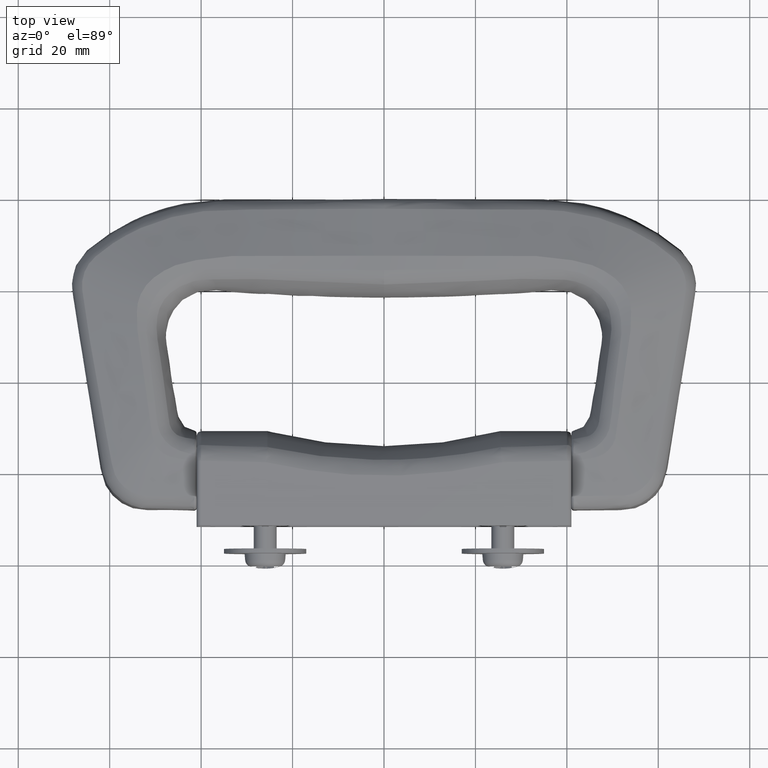
[diagram: clean part render]
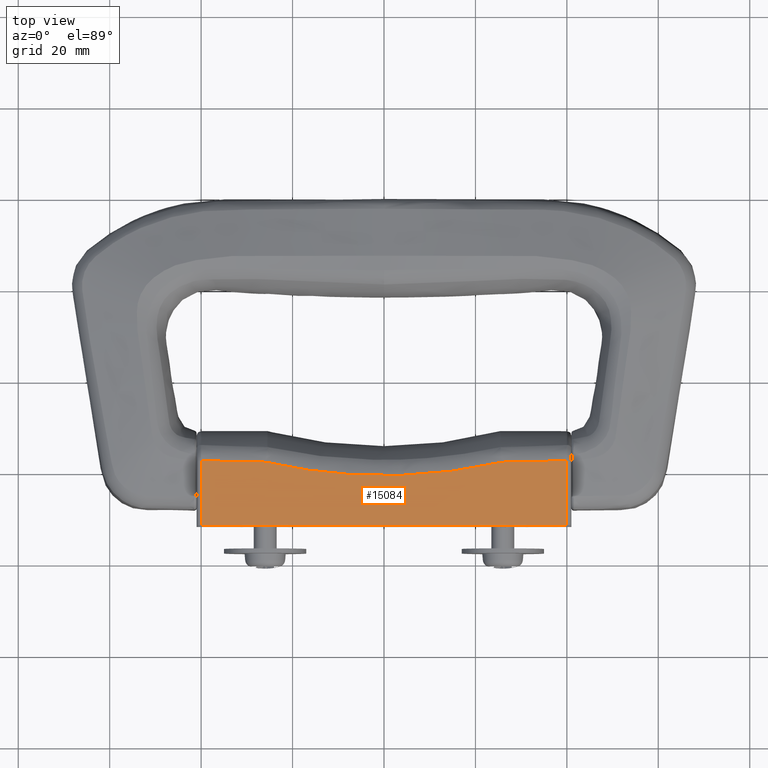
[diagram: same view with one face highlighted and labeled with its STEP entity id]
A machine part, top view. The second image highlights one B-rep face of the part: STEP entity #15084.
In plain terms, the highlighted planar face has unit normal (0, -0, 1).
Its self-contained STEP definition (entity closure, byte-faithful):
#755 = CARTESIAN_POINT ( 'NONE',  ( -21.65171596104325900, 12.91004878362431700, 10.50000000000000200 ) ) ;
#843 = LINE ( 'NONE', #6575, #13180 ) ;
#895 = LINE ( 'NONE', #1050, #13225 ) ;
#946 = CARTESIAN_POINT ( 'NONE',  ( -28.11047643828061000, 13.86612501253413400, 10.50000000000000000 ) ) ;
#947 = CARTESIAN_POINT ( 'NONE',  ( 34.34640326062525900, 14.00626122235785500, 10.49999999999998800 ) ) ;
#1050 = CARTESIAN_POINT ( 'NONE',  ( -40.00000000000000000, 6.999999999999999100, 10.50000000000000000 ) ) ;
#1066 = LINE ( 'NONE', #5747, #10629 ) ;
#1129 = ORIENTED_EDGE ( 'NONE', *, *, #6088, .T. ) ;
#1258 = VERTEX_POINT ( 'NONE', #8271 ) ;
#1656 = CARTESIAN_POINT ( 'NONE',  ( 25.91744196815846000, 13.81965823607241900, 10.49999999999998900 ) ) ;
#1932 = CARTESIAN_POINT ( 'NONE',  ( 23.79007269659754800, 13.33650222574549600, 10.49999999999998900 ) ) ;
#1973 = B_SPLINE_CURVE_WITH_KNOTS ( 'NONE', 3,
 ( #15246, #12846, #947, #9329, #2164, #10537, #3394, #11728, #4588, #12903 ),
 .UNSPECIFIED., .F., .F.,
 ( 4, 3, 3, 4 ),
 ( 0.001000283076197869900, 0.009483074210598152800, 0.01179621480890856400, 0.01508650401174740900 ),
 .UNSPECIFIED. ) ;
#1986 = CARTESIAN_POINT ( 'NONE',  ( -25.91744196816185300, 13.81965823607243800, 10.50000000000000000 ) ) ;
#2080 = DIRECTION ( 'NONE',  ( -0.0000000000000000000, 1.000000000000000000, 2.993305110249448200E-016 ) ) ;
#2163 = CARTESIAN_POINT ( 'NONE',  ( -30.57558702555571300, 13.92047755060223200, 10.50000000000000000 ) ) ;
#2164 = CARTESIAN_POINT ( 'NONE',  ( 30.74868635059841500, 13.92457668638245100, 10.49999999999998800 ) ) ;
#2276 = DIRECTION ( 'NONE',  ( 0.0000000000000000000, -1.000000000000000000, -2.993305110249448200E-016 ) ) ;
#2308 = EDGE_CURVE ( 'NONE', #8793, #13211, #895, .T. ) ;
#2818 = EDGE_CURVE ( 'NONE', #5942, #12652, #6661, .T. ) ;
#3153 = CARTESIAN_POINT ( 'NONE',  ( 21.65205625840939200, 12.91013087448644800, 10.50000000000002000 ) ) ;
#3385 = CARTESIAN_POINT ( 'NONE',  ( -40.00000000000000000, 0.0000000000000000000, 10.50000000000000400 ) ) ;
#3393 = CARTESIAN_POINT ( 'NONE',  ( -33.31276256288870700, 13.98316759584706400, 10.50000000000000200 ) ) ;
#3394 = CARTESIAN_POINT ( 'NONE',  ( 29.20697315264573700, 13.89030136377649400, 10.49999999999998900 ) ) ;
#3623 = ORIENTED_EDGE ( 'NONE', *, *, #14580, .T. ) ;
#3733 = DIRECTION ( 'NONE',  ( -0.0000000000000000000, 1.000000000000000000, 2.993305110249448200E-016 ) ) ;
#3833 = VECTOR ( 'NONE', #3733, 1000.000000000000000 ) ;
#4056 = ORIENTED_EDGE ( 'NONE', *, *, #2308, .T. ) ;
#4100 = ORIENTED_EDGE ( 'NONE', *, *, #11200, .T. ) ;
#4351 = CARTESIAN_POINT ( 'NONE',  ( 15.19320495795107800, 11.86469949385953800, 10.49999999999986100 ) ) ;
#4587 = CARTESIAN_POINT ( 'NONE',  ( -35.94350402314672300, 14.04447183087495100, 10.50000000000000200 ) ) ;
#4588 = CARTESIAN_POINT ( 'NONE',  ( 27.01396687975210400, 13.84251996901201100, 10.49999999999998900 ) ) ;
#4921 = CARTESIAN_POINT ( 'NONE',  ( 40.00000000000000000, 14.16450808053682100, 10.49999999999998600 ) ) ;
#5012 = LINE ( 'NONE', #14010, #7449 ) ;
#5307 = ORIENTED_EDGE ( 'NONE', *, *, #5390, .T. ) ;
#5337 = AXIS2_PLACEMENT_3D ( 'NONE', #10550, #12920, #5800 ) ;
#5390 = EDGE_CURVE ( 'NONE', #12652, #8793, #12863, .T. ) ;
#5532 = VERTEX_POINT ( 'NONE', #9710 ) ;
#5537 = CARTESIAN_POINT ( 'NONE',  ( 4.358307079112554700, 10.86543681995805400, 10.49999999999999300 ) ) ;
#5747 = CARTESIAN_POINT ( 'NONE',  ( -40.00000000000000000, 1.435392964951862200E-015, 10.49999999999999800 ) ) ;
#5782 = CARTESIAN_POINT ( 'NONE',  ( -38.17257740997445800, 14.09723108179389700, 10.50000000000000200 ) ) ;
#5800 = DIRECTION ( 'NONE',  ( 0.006669114532560827300, 0.9999777612083938800, 2.977685812633753500E-016 ) ) ;
#5942 = VERTEX_POINT ( 'NONE', #1656 ) ;
#6018 = EDGE_CURVE ( 'NONE', #5532, #1258, #5012, .T. ) ;
#6088 = EDGE_CURVE ( 'NONE', #13211, #15325, #1066, .T. ) ;
#6523 = CARTESIAN_POINT ( 'NONE',  ( -39.99999999999998600, 14.14071006707158100, 10.49999999999999500 ) ) ;
#6537 = EDGE_LOOP ( 'NONE', ( #4056, #1129, #14861, #12886, #3623, #4100, #14020, #5307 ) ) ;
#6575 = CARTESIAN_POINT ( 'NONE',  ( 41.00000000000000000, 0.0000000000000000000, 10.50000000000000400 ) ) ;
#6661 = B_SPLINE_CURVE_WITH_KNOTS ( 'NONE', 3,
 ( #10297, #1932, #3153, #11492, #4351, #12660, #5537, #13853, #6746, #15056, #7943, #755, #9141, #1986 ),
 .UNSPECIFIED., .F., .F.,
 ( 4, 2, 2, 2, 2, 2, 4 ),
 ( 0.0000000000000000000, 0.006539916787096906500, 0.01307983357419381300, 0.02615966714838762600, 0.03923950072258143600, 0.04577941750967834400, 0.05231933429677525200 ),
 .UNSPECIFIED. ) ;
#6746 = CARTESIAN_POINT ( 'NONE',  ( -8.711329558938471600, 11.12042544990218800, 10.50000000000000900 ) ) ;
#6987 = CARTESIAN_POINT ( 'NONE',  ( -39.99999999999998600, 14.14071006707158100, 10.49999999999999500 ) ) ;
#7449 = VECTOR ( 'NONE', #2080, 1000.000000000000000 ) ;
#7943 = CARTESIAN_POINT ( 'NONE',  ( -17.35191116791209600, 12.17386950464099900, 10.50000000000000400 ) ) ;
#8082 = CARTESIAN_POINT ( 'NONE',  ( -27.01396687975506700, 13.84251996901201100, 10.50000000000000000 ) ) ;
#8271 = CARTESIAN_POINT ( 'NONE',  ( 40.00000000000000000, 6.999999999999999100, 10.49999999999998400 ) ) ;
#8793 = VERTEX_POINT ( 'NONE', #6523 ) ;
#8880 = EDGE_CURVE ( 'NONE', #5532, #15325, #843, .T. ) ;
#9141 = CARTESIAN_POINT ( 'NONE',  ( -23.79014665174866400, 13.33651902201799700, 10.49999999999999800 ) ) ;
#9219 = CARTESIAN_POINT ( 'NONE',  ( -25.91744196816185300, 13.81965823607243800, 10.50000000000000000 ) ) ;
#9311 = CARTESIAN_POINT ( 'NONE',  ( -25.91744196816185300, 13.81965823607243800, 10.50000000000000000 ) ) ;
#9328 = CARTESIAN_POINT ( 'NONE',  ( -29.20697315264783700, 13.89030136377648000, 10.50000000000000000 ) ) ;
#9329 = CARTESIAN_POINT ( 'NONE',  ( 31.51953474013913900, 13.94207845057949900, 10.49999999999998800 ) ) ;
#9710 = CARTESIAN_POINT ( 'NONE',  ( 40.00000000000000000, 0.0000000000000000000, 10.50000000000000400 ) ) ;
#9788 = LINE ( 'NONE', #4921, #3833 ) ;
#10297 = CARTESIAN_POINT ( 'NONE',  ( 25.91744196815846000, 13.81965823607241900, 10.49999999999998900 ) ) ;
#10350 = FACE_OUTER_BOUND ( 'NONE', #6537, .T. ) ;
#10536 = CARTESIAN_POINT ( 'NONE',  ( -31.94418137641800800, 13.95154369024263900, 10.50000000000000200 ) ) ;
#10537 = CARTESIAN_POINT ( 'NONE',  ( 29.97783284894321600, 13.90729783493054400, 10.49999999999998900 ) ) ;
#10550 = CARTESIAN_POINT ( 'NONE',  ( -25.60077034712918800, 3.906692194755525500, 10.49999999999999600 ) ) ;
#10629 = VECTOR ( 'NONE', #11690, 1000.000000000000000 ) ;
#11075 = CARTESIAN_POINT ( 'NONE',  ( -40.00000000000000000, 6.999999999999999100, 10.50000000000000000 ) ) ;
#11200 = EDGE_CURVE ( 'NONE', #11518, #5942, #1973, .T. ) ;
#11318 = DIRECTION ( 'NONE',  ( -1.000000000000000000, -0.0000000000000000000, -0.0000000000000000000 ) ) ;
#11492 = CARTESIAN_POINT ( 'NONE',  ( 17.35411670580556300, 12.17422330608843800, 10.50000000000001400 ) ) ;
#11518 = VERTEX_POINT ( 'NONE', #13201 ) ;
#11690 = DIRECTION ( 'NONE',  ( 0.0000000000000000000, -1.000000000000000000, -2.993305110249448200E-016 ) ) ;
#11727 = CARTESIAN_POINT ( 'NONE',  ( -34.62813924162824000, 14.01356210099877800, 10.50000000000000200 ) ) ;
#11728 = CARTESIAN_POINT ( 'NONE',  ( 28.11047643827808400, 13.86612501253414300, 10.49999999999998900 ) ) ;
#12652 = VERTEX_POINT ( 'NONE', #9311 ) ;
#12660 = CARTESIAN_POINT ( 'NONE',  ( 8.703090837774823300, 11.11962220075972900, 10.49999999999986100 ) ) ;
#12846 = CARTESIAN_POINT ( 'NONE',  ( 37.17320333671972300, 14.07343685712828600, 10.49999999999994300 ) ) ;
#12863 = B_SPLINE_CURVE_WITH_KNOTS ( 'NONE', 3,
 ( #9219, #8082, #946, #9328, #2163, #10536, #3393, #11727, #4587, #12902, #5782, #14098, #6987 ),
 .UNSPECIFIED., .F., .F.,
 ( 4, 3, 3, 3, 4 ),
 ( 0.0000000000000000000, 0.003290289632418029500, 0.007397129140118374900, 0.01134431224718786600, 0.01408622160719758900 ),
 .UNSPECIFIED. ) ;
#12886 = ORIENTED_EDGE ( 'NONE', *, *, #6018, .T. ) ;
#12902 = CARTESIAN_POINT ( 'NONE',  ( -37.25886343388186400, 14.07560466733052200, 10.50000000000000200 ) ) ;
#12903 = CARTESIAN_POINT ( 'NONE',  ( 25.91744196815846000, 13.81965823607241900, 10.49999999999998900 ) ) ;
#12920 = DIRECTION ( 'NONE',  ( 2.332053236033240400E-016, -2.993305110249448700E-016, 1.000000000000000000 ) ) ;
#13180 = VECTOR ( 'NONE', #11318, 1000.000000000000000 ) ;
#13201 = CARTESIAN_POINT ( 'NONE',  ( 39.99999999999999300, 14.14071006707154900, 10.50000000000002700 ) ) ;
#13211 = VERTEX_POINT ( 'NONE', #11075 ) ;
#13225 = VECTOR ( 'NONE', #2276, 1000.000000000000000 ) ;
#13853 = CARTESIAN_POINT ( 'NONE',  ( -4.368908444300526400, 10.86584985776595300, 10.49999999999999300 ) ) ;
#14010 = CARTESIAN_POINT ( 'NONE',  ( 40.00000000000000000, 6.999999999999999100, 10.49999999999998400 ) ) ;
#14020 = ORIENTED_EDGE ( 'NONE', *, *, #2818, .T. ) ;
#14098 = CARTESIAN_POINT ( 'NONE',  ( -39.08628883491633100, 14.11896521225598800, 10.50000000000001100 ) ) ;
#14580 = EDGE_CURVE ( 'NONE', #1258, #11518, #9788, .T. ) ;
#14861 = ORIENTED_EDGE ( 'NONE', *, *, #8880, .F. ) ;
#15056 = CARTESIAN_POINT ( 'NONE',  ( -15.19475492950700400, 11.86494881280999500, 10.50000000000001200 ) ) ;
#15084 = ADVANCED_FACE ( 'NONE', ( #10350 ), #15262, .T. ) ;
#15246 = CARTESIAN_POINT ( 'NONE',  ( 39.99999999999999300, 14.14071006707154900, 10.50000000000002700 ) ) ;
#15262 = PLANE ( 'NONE',  #5337 ) ;
#15325 = VERTEX_POINT ( 'NONE', #3385 ) ;